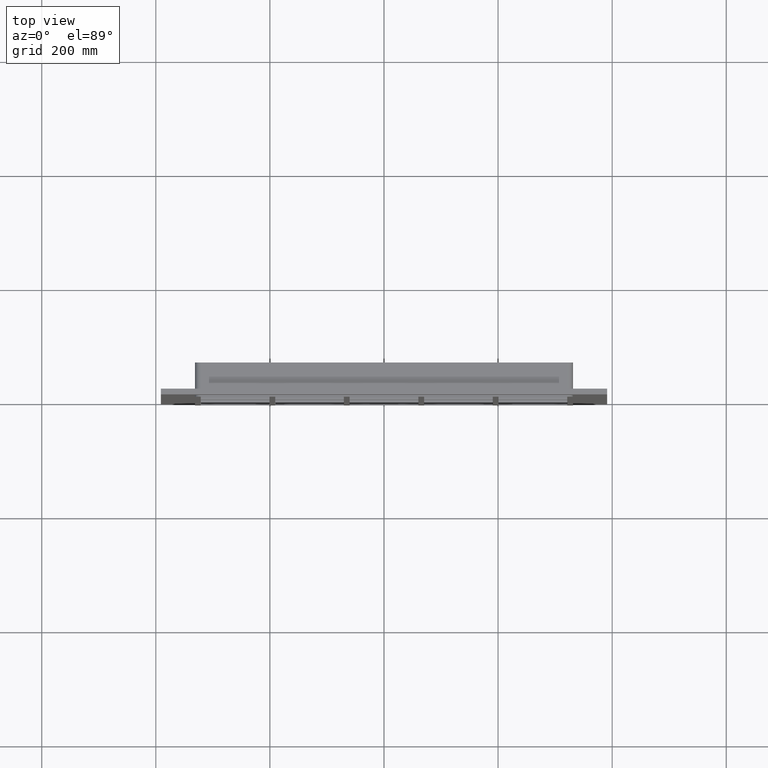
[diagram: clean part render]
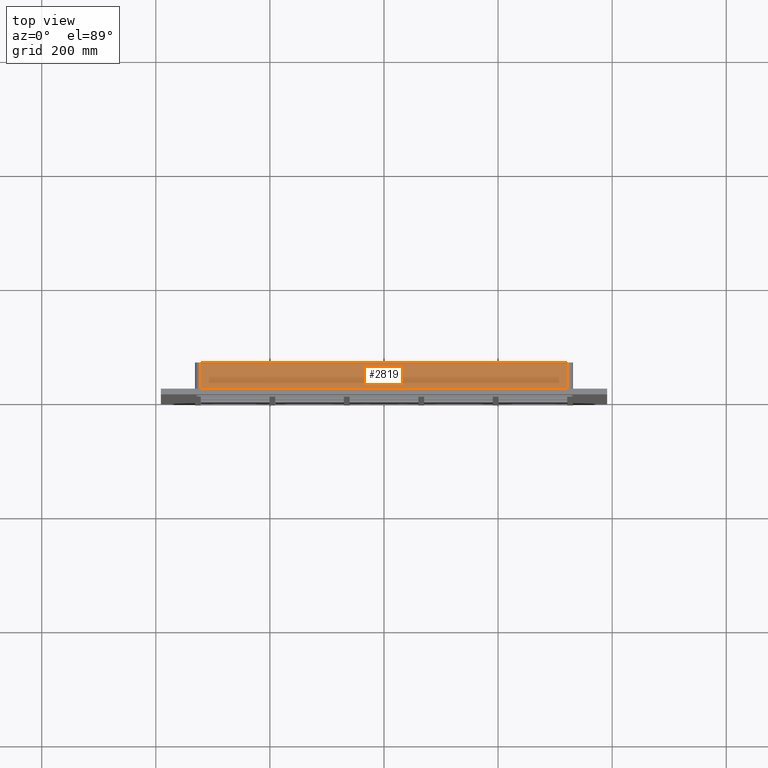
[diagram: same view with one face highlighted and labeled with its STEP entity id]
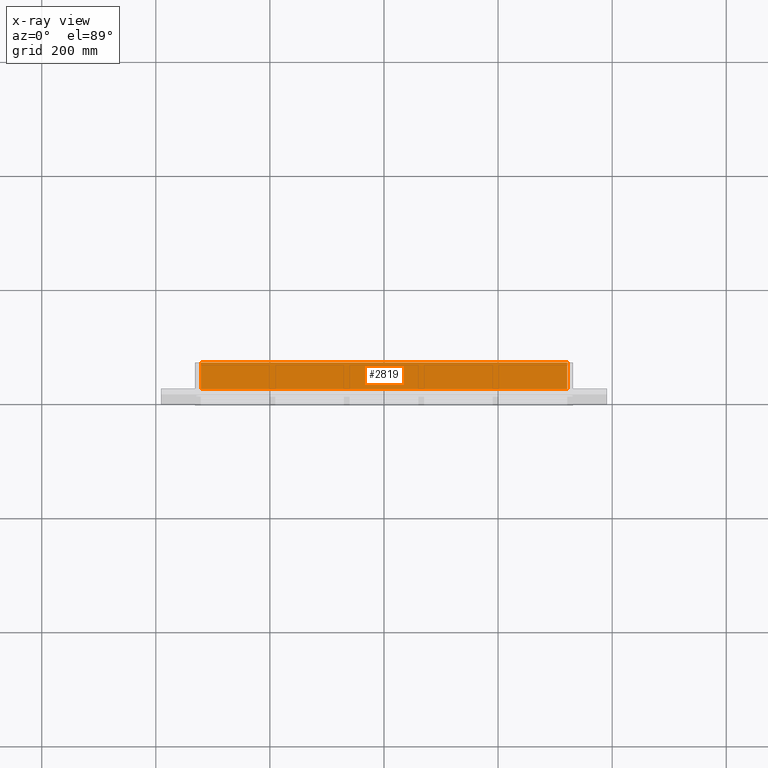
[diagram: x-ray of the same camera — body ghosted, the highlighted face saturated]
A machine part, top view. The second image highlights one B-rep face of the part: STEP entity #2819.
The next image is the same camera in x-ray: the body ghosted, the highlighted face saturated — about 0% of this face is hidden behind the body in this view.
In plain terms, the highlighted planar face has unit normal (0, 0, 1).
Its self-contained STEP definition (entity closure, byte-faithful):
#881=CARTESIAN_POINT('',(-321.25,57.0,447.0));
#882=VERTEX_POINT('',#881);
#890=CARTESIAN_POINT('',(321.25,57.0,447.0));
#891=VERTEX_POINT('',#890);
#892=CARTESIAN_POINT('',(-321.25,57.0,447.0));
#893=DIRECTION('',(1.0,0.0,0.0));
#894=VECTOR('',#893,642.5);
#895=LINE('',#892,#894);
#896=EDGE_CURVE('',#882,#891,#895,.T.);
#2323=CARTESIAN_POINT('',(321.25,10.0,447.0));
#2324=VERTEX_POINT('',#2323);
#2332=CARTESIAN_POINT('',(-321.25,10.0,447.0));
#2333=VERTEX_POINT('',#2332);
#2334=CARTESIAN_POINT('',(-321.25,10.0,447.0));
#2335=DIRECTION('',(1.0,0.0,0.0));
#2336=VECTOR('',#2335,642.5);
#2337=LINE('',#2334,#2336);
#2338=EDGE_CURVE('',#2333,#2324,#2337,.T.);
#2583=CARTESIAN_POINT('',(321.25,57.0,447.0));
#2584=DIRECTION('',(0.0,-1.0,0.0));
#2585=VECTOR('',#2584,47.0);
#2586=LINE('',#2583,#2585);
#2587=EDGE_CURVE('',#891,#2324,#2586,.T.);
#2797=CARTESIAN_POINT('',(-321.25,10.0,447.0));
#2798=DIRECTION('',(0.0,1.0,0.0));
#2799=VECTOR('',#2798,47.0);
#2800=LINE('',#2797,#2799);
#2801=EDGE_CURVE('',#2333,#882,#2800,.T.);
#2808=CARTESIAN_POINT('',(-331.25,0.0,447.0));
#2809=DIRECTION('',(0.0,0.0,1.0));
#2810=DIRECTION('',(1.0,0.0,0.0));
#2811=AXIS2_PLACEMENT_3D('',#2808,#2809,#2810);
#2812=PLANE('',#2811);
#2813=ORIENTED_EDGE('',*,*,#2338,.T.);
#2814=ORIENTED_EDGE('',*,*,#2587,.F.);
#2815=ORIENTED_EDGE('',*,*,#896,.F.);
#2816=ORIENTED_EDGE('',*,*,#2801,.F.);
#2817=EDGE_LOOP('',(#2813,#2814,#2815,#2816));
#2818=FACE_OUTER_BOUND('',#2817,.T.);
#2819=ADVANCED_FACE('',(#2818),#2812,.T.);